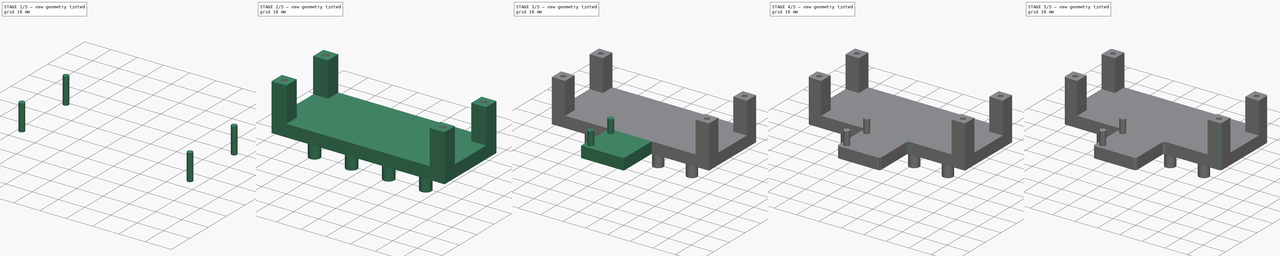
[diagram: build sequence overview — one tinted view per stage of 5, left to right]
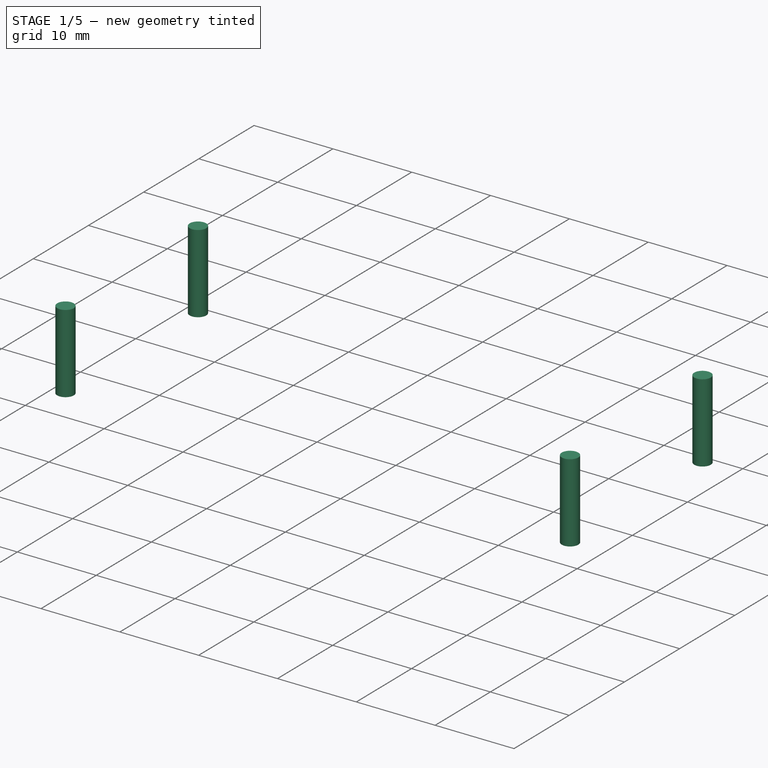
[diagram: stage 1 of 5 — iso view after this stage's code; geometry added in this stage tinted green]
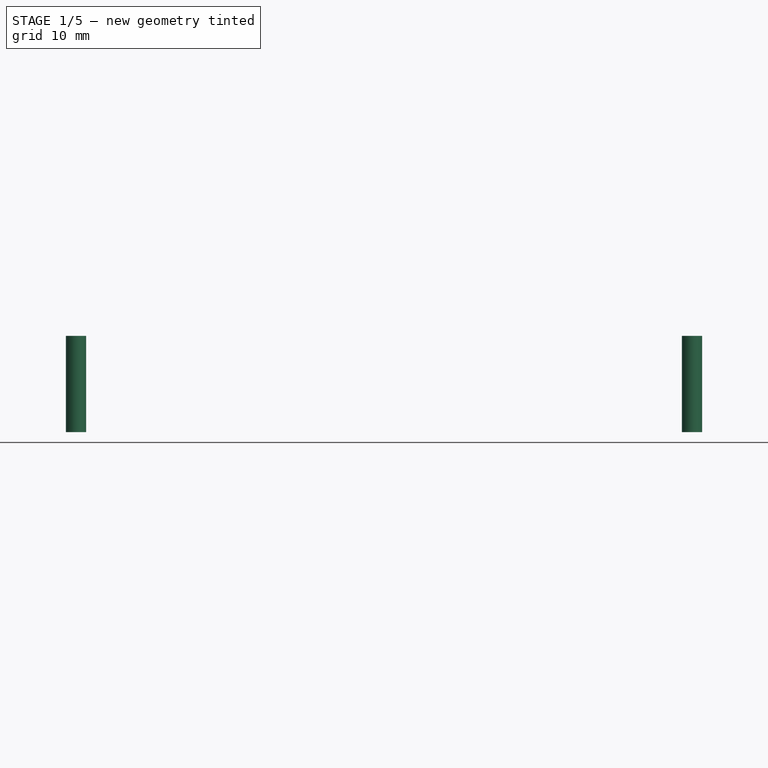
[diagram: stage 1 of 5 — front view after this stage's code; geometry added in this stage tinted green]
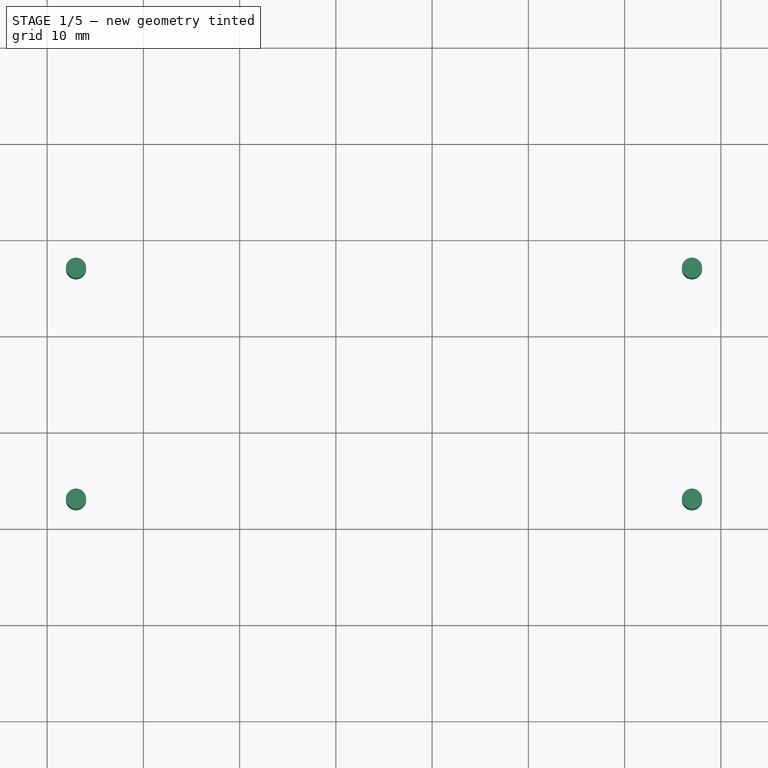
[diagram: stage 1 of 5 — top view after this stage's code; geometry added in this stage tinted green]
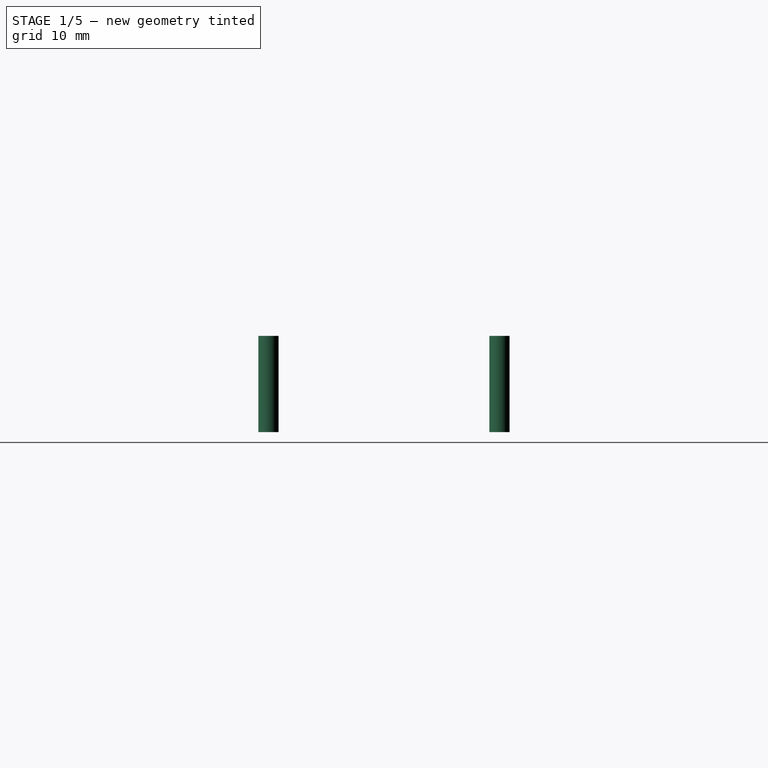
[diagram: stage 1 of 5 — right view after this stage's code; geometry added in this stage tinted green]
FCSTD DOCUMENT  (FreeCAD 1.0R39109 (Git))
Label: speaker-plate
License: All rights reserved
LicenseURL: https://en.wikipedia.org/wiki/All_rights_reserved
objects: Part::Fillet×7, Sketcher::SketchObject×5, Part::Extrusion×5, Part::MultiFuse×3, Part::Box×1, Part::Cut×1
note: 27 computed .brp shape members not serialized (recipe doc carries the construction recipe); baked Part::Feature solids carry a one-line shape summary decoded from their .brp

FEATURE [Part::Box] Box  label="Cube"
  AttacherType = Attacher::AttachEngine3D
  Height = 5
  Length = 70
  Width = 30
FEATURE [Sketcher::SketchObject] Sketch
  ArcFitTolerance = 1e-06
  AttachmentSupport = -> [Box]
  ExternalGeometry = -> [Box]
  FullyConstrained = true
  MakeInternals = false
  MapMode = 5
  Placement = pos=(0,0,5) rot=(0,0,1;0rad)
  sketch-geometry (16):
    g0: LineSegment StartX=0 StartY=30 StartZ=0 EndX=0 EndY=24 EndZ=0
    g1: LineSegment StartX=0 StartY=24 StartZ=0 EndX=6 EndY=24 EndZ=0
    g2: LineSegment StartX=6 StartY=24 StartZ=0 EndX=6 EndY=30 EndZ=0
    g3: LineSegment StartX=6 StartY=30 StartZ=0 EndX=0 EndY=30 EndZ=0
    g4: LineSegment StartX=0 StartY=0 StartZ=0 EndX=6 EndY=0 EndZ=0
    g5: LineSegment StartX=6 StartY=0 StartZ=0 EndX=6 EndY=6 EndZ=0
    g6: LineSegment StartX=6 StartY=6 StartZ=0 EndX=0 EndY=6 EndZ=0
    g7: LineSegment StartX=0 StartY=6 StartZ=0 EndX=0 EndY=0 EndZ=0
    g8: LineSegment StartX=70 StartY=0 StartZ=0 EndX=70 EndY=6 EndZ=0
    g9: LineSegment StartX=70 StartY=6 StartZ=0 EndX=64 EndY=6 EndZ=0
    g10: LineSegment StartX=64 StartY=6 StartZ=0 EndX=64 EndY=0 EndZ=0
    g11: LineSegment StartX=64 StartY=0 StartZ=0 EndX=70 EndY=0 EndZ=0
    g12: LineSegment StartX=70 StartY=30 StartZ=0 EndX=64 EndY=30 EndZ=0
    g13: LineSegment StartX=64 StartY=30 StartZ=0 EndX=64 EndY=24 EndZ=0
    g14: LineSegment StartX=64 StartY=24 StartZ=0 EndX=70 EndY=24 EndZ=0
    g15: LineSegment StartX=70 StartY=24 StartZ=0 EndX=70 EndY=30 EndZ=0
  constraints (44):
    c: Coincident(g0,g1)
    c: Coincident(g1,g2)
    c: Coincident(g2,g3)
    c: Coincident(g3,g0)
    c: Vertical(g0)
    c: Vertical(g2)
    c: Horizontal(g1)
    c: Horizontal(g3)
    c: Coincident(g0,g-6)
    c: Coincident(g4,g5)
    c: Coincident(g5,g6)
    c: Coincident(g6,g7)
    c: Coincident(g7,g4)
    c: Horizontal(g4)
    c: Horizontal(g6)
    c: Vertical(g5)
    c: Vertical(g7)
    c: Coincident(g4,g-1)
    c: Coincident(g8,g9)
    c: Coincident(g9,g10)
    c: Coincident(g10,g11)
    c: Coincident(g11,g8)
    c: Vertical(g8)
    c: Vertical(g10)
    c: Horizontal(g9)
    c: Horizontal(g11)
    c: Coincident(g8,g-5)
    c: Coincident(g12,g13)
    c: Coincident(g13,g14)
    c: Coincident(g14,g15)
    c: Coincident(g15,g12)
    c: Horizontal(g12)
    c: Horizontal(g14)
    c: Vertical(g13)
    c: Vertical(g15)
    c: Coincident(g12,g-4)
    c: Distance(g3) = 6
    c: Distance(g0) = 6
    c: Distance(g7) = 6
    c: Distance(g4) = 6
    c: Distance(g11) = 6
    c: Distance(g8) = 6
    c: Distance(g12) = 6
    c: Distance(g15) = 6
FEATURE [Part::Extrusion] Extrude
  Base = -> Sketch
  Dir = (0,0,1)
  DirMode = 2
  FaceMakerClass = Part::FaceMakerBullseye
  FaceMakerMode = 3
  LengthFwd = 14
  LengthRev = 0
  Solid = true
  Symmetric = false
FEATURE [Sketcher::SketchObject] Sketch001
  ArcFitTolerance = 1e-06
  AttachmentSupport = -> [Extrude]
  ExternalGeometry = -> [Extrude]
  FullyConstrained = true
  MakeInternals = false
  MapMode = 5
  Placement = pos=(0,0,19) rot=(0,0,1;0rad)
  sketch-geometry (4):
    g0: Circle CenterX=3 CenterY=27 CenterZ=0 NormalX=0 NormalY=0 NormalZ=1 AngleXU=0 Radius=1.05
    g1: Circle CenterX=3 CenterY=3 CenterZ=0 NormalX=0 NormalY=0 NormalZ=1 AngleXU=0 Radius=1.05
    g2: Circle CenterX=67 CenterY=3 CenterZ=0 NormalX=0 NormalY=0 NormalZ=1 AngleXU=0 Radius=1.05
    g3: Circle CenterX=67 CenterY=27 CenterZ=0 NormalX=0 NormalY=0 NormalZ=1 AngleXU=0 Radius=1.05
  constraints (12):
    c: Diameter(g0) = 2.1
    c: Distance(g0,g-3) = 3
    c: Distance(g0,g-4) = 3
    c: Distance(g1,g-1) = 3
    c: Distance(g1,g-2) = 3
    c: Diameter(g1) = 2.1
    c: Diameter(g2) = 2.1
    c: Distance(g2,g-5) = 3
    c: Distance(g2,g-1) = 3
    c: Distance(g3,g-6) = 3
    c: Distance(g3,g-7) = 3
    c: Diameter(g3) = 2.1
FEATURE [Part::Extrusion] Extrude001
  Base = -> Sketch001
  Dir = (0,0,1)
  DirMode = 2
  FaceMakerClass = Part::FaceMakerBullseye
  FaceMakerMode = 3
  LengthFwd = 0
  LengthRev = 10
  Solid = true
  Symmetric = false
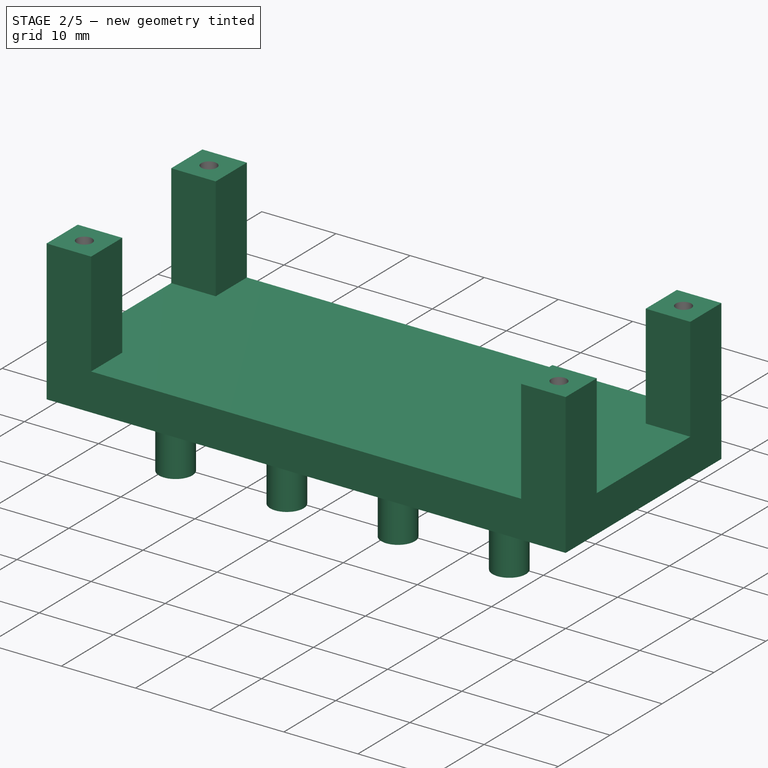
[diagram: stage 2 of 5 — iso view after this stage's code; geometry added in this stage tinted green]
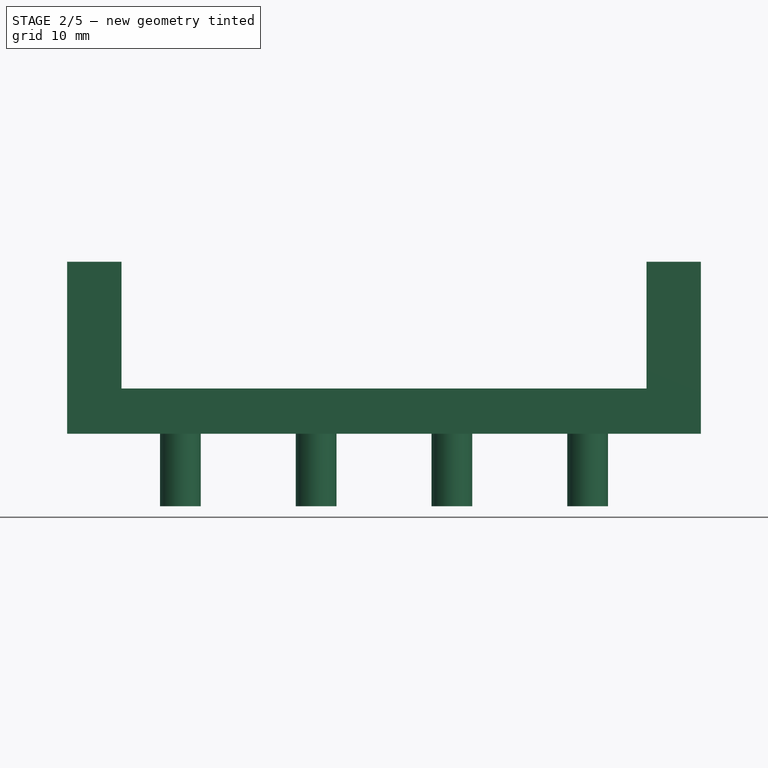
[diagram: stage 2 of 5 — front view after this stage's code; geometry added in this stage tinted green]
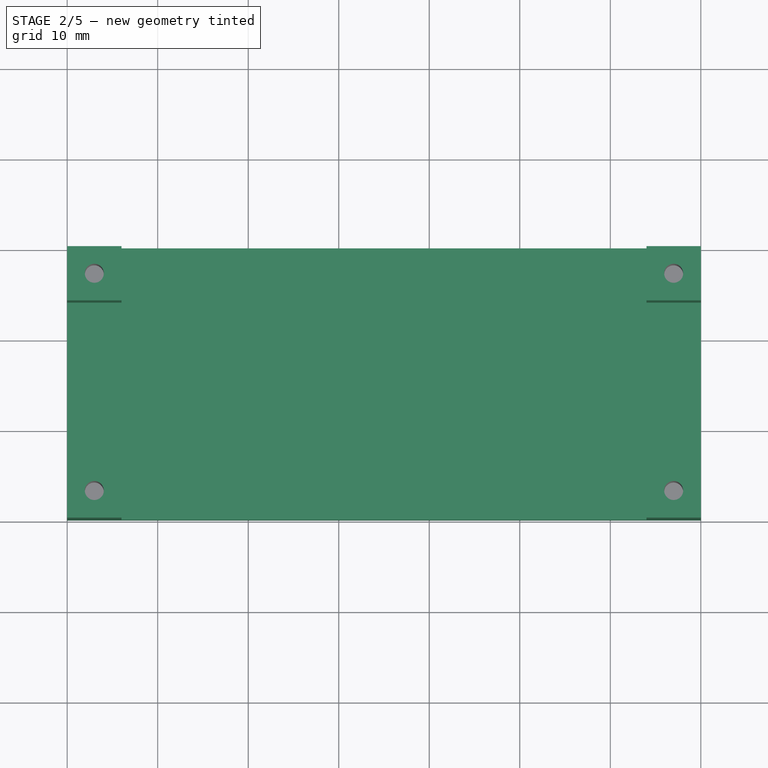
[diagram: stage 2 of 5 — top view after this stage's code; geometry added in this stage tinted green]
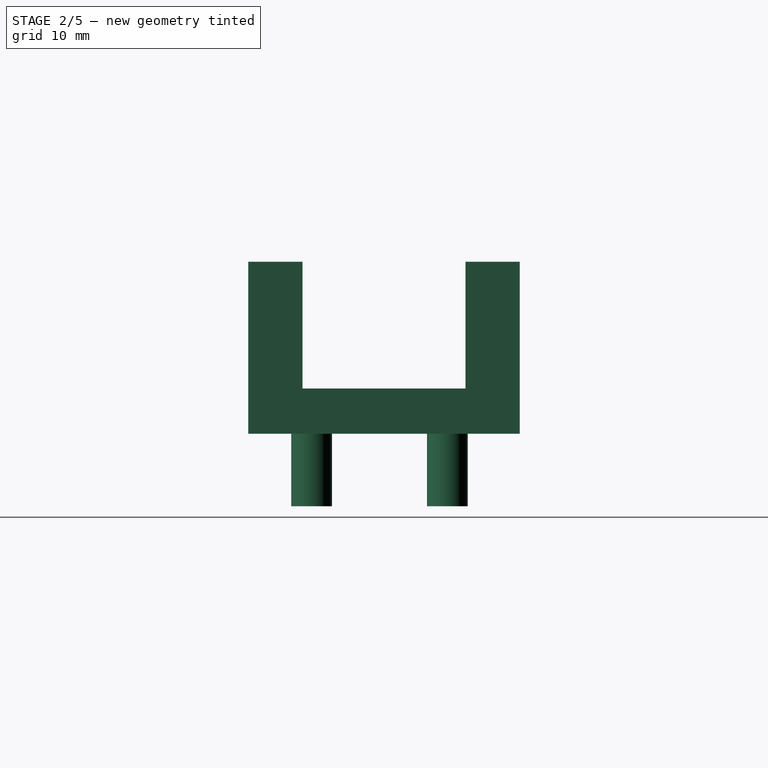
[diagram: stage 2 of 5 — right view after this stage's code; geometry added in this stage tinted green]
FEATURE [Part::Cut] Cut
  Base = -> Extrude
  Tool = -> Extrude001
FEATURE [Part::MultiFuse] Fusion
  Shapes = -> [Box,Cut]
FEATURE [Sketcher::SketchObject] Sketch002
  ArcFitTolerance = 1e-06
  AttachmentSupport = -> [Fusion]
  ExternalGeometry = -> [Fusion]
  FullyConstrained = true
  MakeInternals = false
  MapMode = 5
  Placement = pos=(0,0,0) rot=(1,0,0;3.14159rad)
  sketch-geometry (8):
    g0: Circle CenterX=42.5 CenterY=-7 CenterZ=0 NormalX=0 NormalY=0 NormalZ=1 AngleXU=0 Radius=2.25
    g1: Circle CenterX=27.5 CenterY=-7 CenterZ=0 NormalX=0 NormalY=0 NormalZ=1 AngleXU=0 Radius=2.25
    g2: Circle CenterX=57.5 CenterY=-7 CenterZ=0 NormalX=0 NormalY=0 NormalZ=1 AngleXU=0 Radius=2.25
    g3: Circle CenterX=12.5 CenterY=-7 CenterZ=0 NormalX=0 NormalY=0 NormalZ=1 AngleXU=0 Radius=2.25
    g4: Circle CenterX=42.5 CenterY=-22 CenterZ=0 NormalX=0 NormalY=0 NormalZ=1 AngleXU=0 Radius=2.25
    g5: Circle CenterX=57.5 CenterY=-22 CenterZ=0 NormalX=0 NormalY=0 NormalZ=1 AngleXU=0 Radius=2.25
    g6: Circle CenterX=12.5 CenterY=-22 CenterZ=0 NormalX=0 NormalY=0 NormalZ=1 AngleXU=0 Radius=2.25
    g7: Circle CenterX=27.5 CenterY=-22 CenterZ=0 NormalX=0 NormalY=0 NormalZ=1 AngleXU=0 Radius=2.25
  constraints (24):
    c: Diameter(g3) = 4.5
    c: Diameter(g1) = 4.5
    c: Diameter(g0) = 4.5
    c: Diameter(g4) = 4.5
    c: Diameter(g5) = 4.5
    c: Diameter(g2) = 4.5
    c: Distance(g1,g0) = 15
    c: Distance(g2,g0) = 15
    c: Distance(g3,g1) = 15
    c: Distance(g4,g5) = 15
    c: Diameter(g7) = 4.5
    c: Diameter(g6) = 4.5
    c: Distance(g7,g4) = 15
    c: Distance(g6,g7) = 15
    c: Distance(g2,g-1) = 7
    c: Distance(g0,g-1) = 7
    c: Distance(g1,g-1) = 7
    c: Distance(g3,g-1) = 7
    c: Distance(g6,g3) = 15
    c: Distance(g7,g1) = 15
    c: Distance(g4,g0) = 15
    c: Distance(g5,g2) = 15
    c: Distance(g3,g-2) = 12.5
    c: Distance(g6,g-2) = 12.5
FEATURE [Part::Extrusion] Extrude003
  Base = -> Sketch002
  Dir = (0,0,-1)
  DirMode = 2
  FaceMakerClass = Part::FaceMakerBullseye
  FaceMakerMode = 3
  LengthFwd = 8
  LengthRev = 0
  Solid = true
  Symmetric = false
FEATURE [Part::MultiFuse] Fusion001
  Shapes = -> [Fusion,Extrude003]
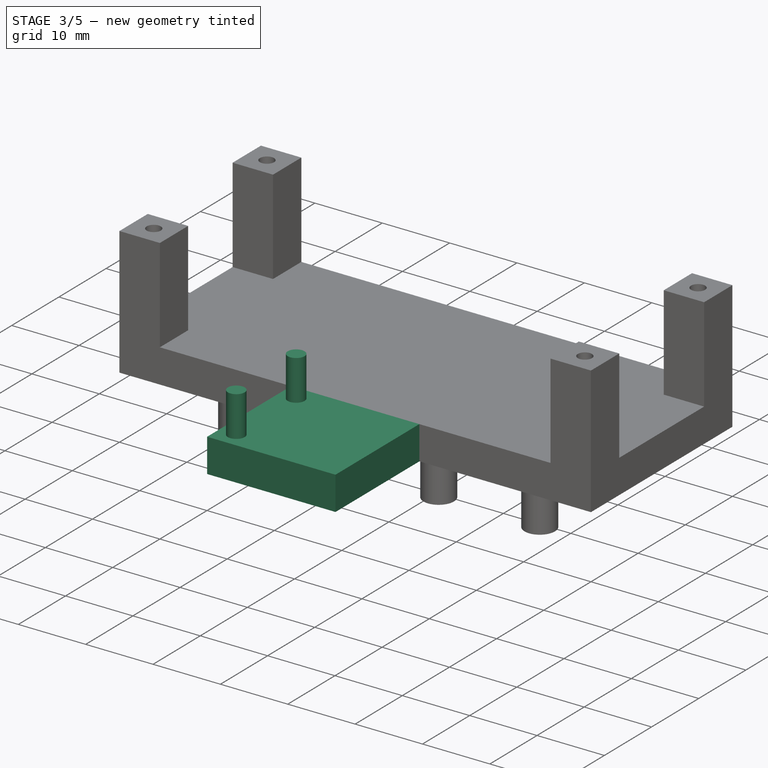
[diagram: stage 3 of 5 — iso view after this stage's code; geometry added in this stage tinted green]
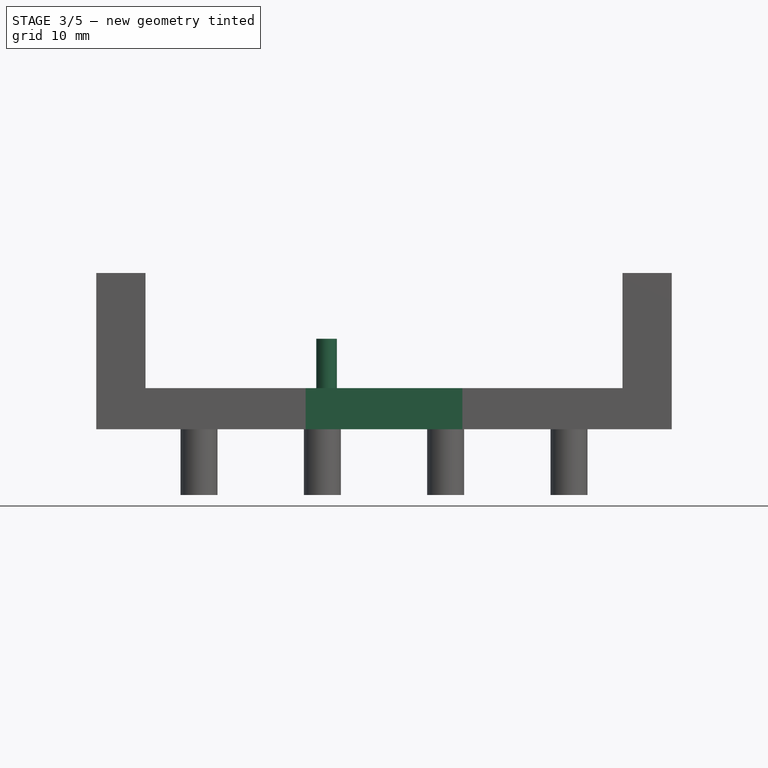
[diagram: stage 3 of 5 — front view after this stage's code; geometry added in this stage tinted green]
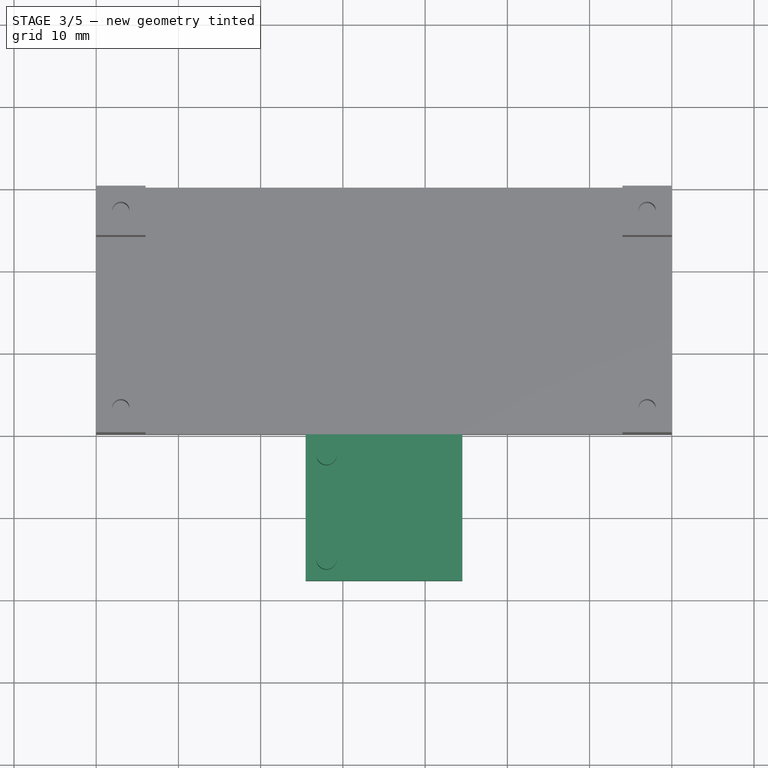
[diagram: stage 3 of 5 — top view after this stage's code; geometry added in this stage tinted green]
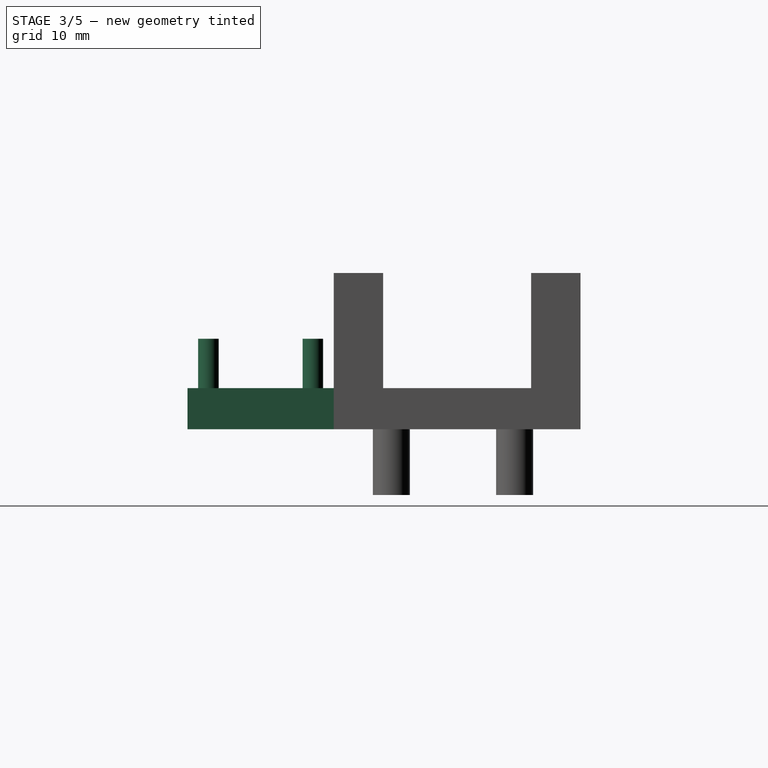
[diagram: stage 3 of 5 — right view after this stage's code; geometry added in this stage tinted green]
FEATURE [Sketcher::SketchObject] Sketch003
  ArcFitTolerance = 1e-06
  AttachmentSupport = -> [Fusion001]
  ExternalGeometry = -> [Fusion001]
  FullyConstrained = true
  MakeInternals = false
  MapMode = 5
  Placement = pos=(0,0,0) rot=(1,0,0;1.5708rad)
  sketch-geometry (4):
    g0: LineSegment StartX=25.475 StartY=5 StartZ=0 EndX=25.475 EndY=0 EndZ=0
    g1: LineSegment StartX=25.475 StartY=0 StartZ=0 EndX=44.525 EndY=0 EndZ=0
    g2: LineSegment StartX=44.525 StartY=0 StartZ=0 EndX=44.525 EndY=5 EndZ=0
    g3: LineSegment StartX=44.525 StartY=5 StartZ=0 EndX=25.475 EndY=5 EndZ=0
  constraints (12):
    c: Coincident(g0,g1)
    c: Coincident(g1,g2)
    c: Coincident(g2,g3)
    c: Coincident(g3,g0)
    c: Vertical(g0)
    c: Vertical(g2)
    c: Horizontal(g1)
    c: Horizontal(g3)
    c: PointOnObject(g0,g-4)
    c: PointOnObject(g1,g-8)
    c: Distance(g3) = 19.05
    c: Distance(g0,g-6) = 25.475
FEATURE [Part::Extrusion] Extrude004
  Base = -> Sketch003
  Dir = (0,-1,2e-16)
  DirMode = 2
  FaceMakerClass = Part::FaceMakerBullseye
  FaceMakerMode = 3
  LengthFwd = 17.78
  LengthRev = 0
  Solid = true
  Symmetric = false
FEATURE [Sketcher::SketchObject] Sketch004
  ArcFitTolerance = 1e-06
  AttachmentSupport = -> [Extrude004]
  ExternalGeometry = -> [Extrude004,Fusion001]
  FullyConstrained = true
  MakeInternals = false
  MapMode = 5
  Placement = pos=(0,1.1e-15,5) rot=(0,0,1;0rad)
  sketch-geometry (2):
    g0: Circle CenterX=28.015 CenterY=-2.54 CenterZ=0 NormalX=0 NormalY=0 NormalZ=1 AngleXU=0 Radius=1.25
    g1: Circle CenterX=28.015 CenterY=-15.24 CenterZ=0 NormalX=0 NormalY=0 NormalZ=1 AngleXU=0 Radius=1.25
  constraints (6):
    c: Diameter(g1) = 2.5
    c: Diameter(g0) = 2.5
    c: Distance(g0,g-3) = 2.54
    c: Distance(g0,g1) = 12.7
    c: Distance(g1,g-3) = 2.54
    c: Distance(g1,g-4) = 2.54
FEATURE [Part::Extrusion] Extrude006
  Base = -> Sketch004
  Dir = (0,0,1)
  DirMode = 2
  FaceMakerClass = Part::FaceMakerBullseye
  FaceMakerMode = 3
  LengthFwd = 6
  LengthRev = 0
  Solid = true
  Symmetric = false
FEATURE [Part::MultiFuse] Fusion002
  Shapes = -> [Extrude006,Extrude004,Fusion001]
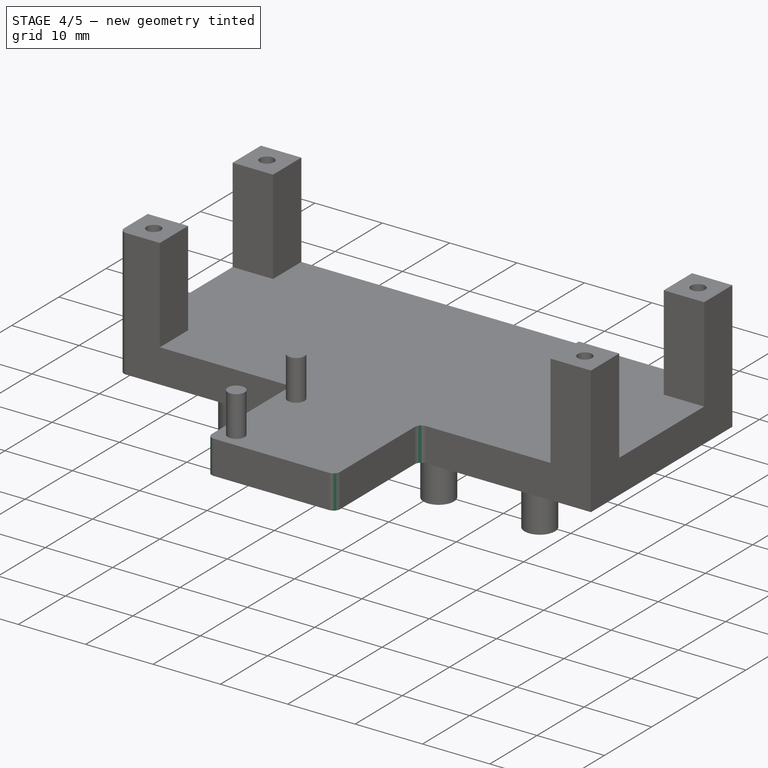
[diagram: stage 4 of 5 — iso view after this stage's code; geometry added in this stage tinted green]
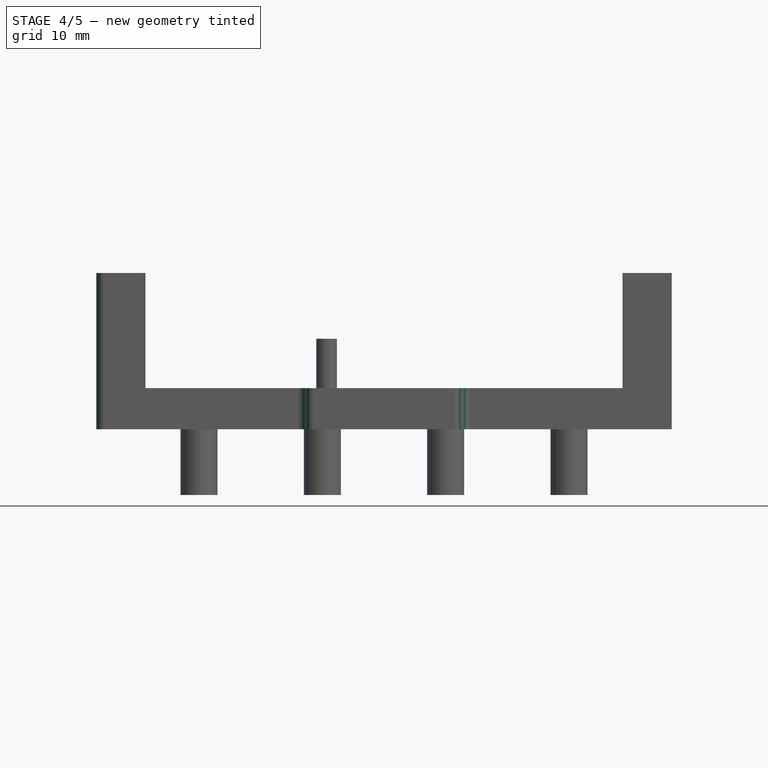
[diagram: stage 4 of 5 — front view after this stage's code; geometry added in this stage tinted green]
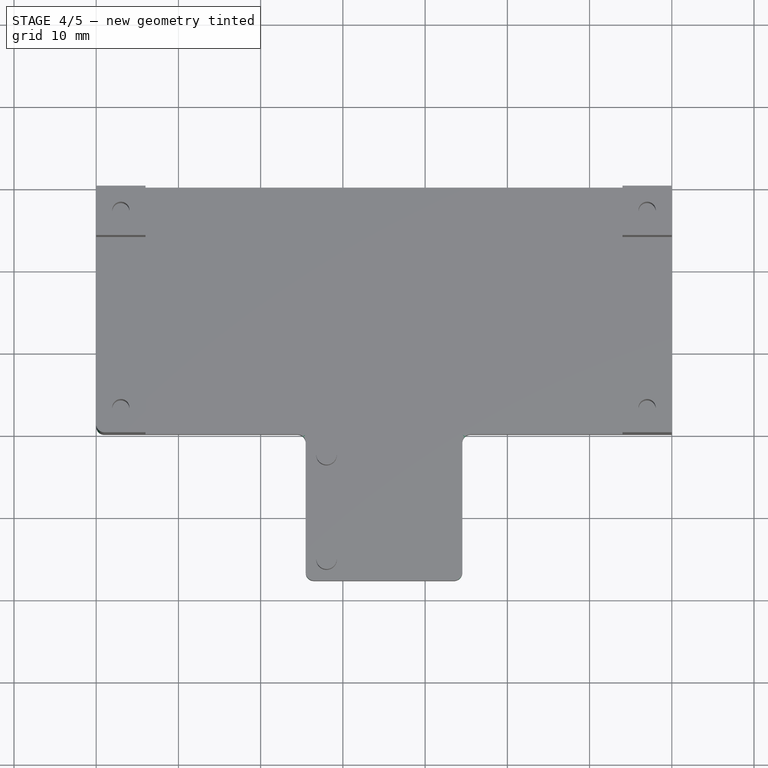
[diagram: stage 4 of 5 — top view after this stage's code; geometry added in this stage tinted green]
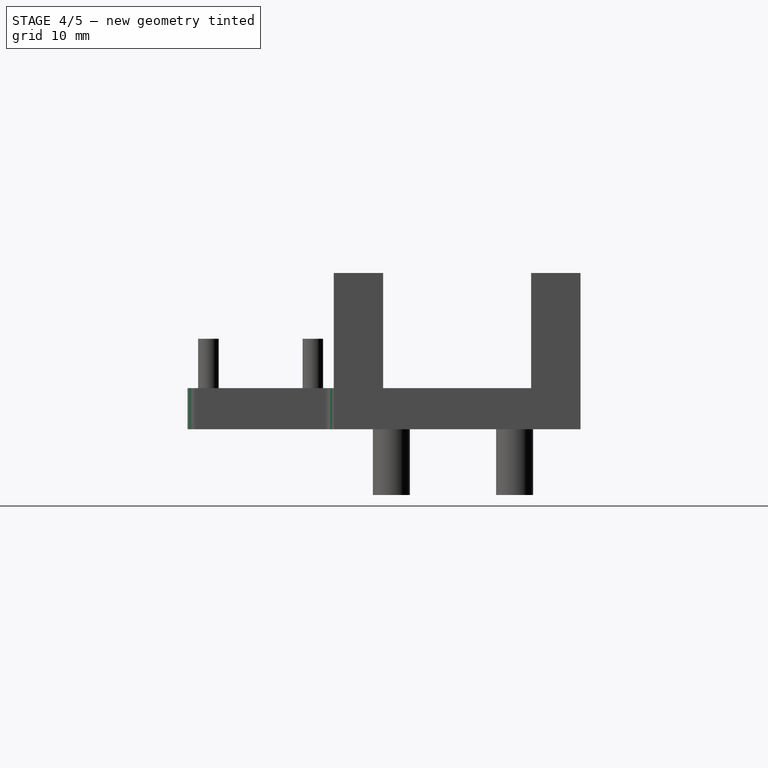
[diagram: stage 4 of 5 — right view after this stage's code; geometry added in this stage tinted green]
FEATURE [Part::Fillet] Fillet
  Base = -> Fusion002
  EdgeLinks = -> Fusion002 [Edge16,Edge47]
  Edges = 2 edges r=1: [Edge16,Edge47]
FEATURE [Part::Fillet] Fillet001
  Base = -> Fillet
  EdgeLinks = -> Fillet [Edge3,Edge24]
  Edges = 2 edges r=1: [Edge3,Edge24]
FEATURE [Part::Fillet] Fillet002
  Base = -> Fillet001
  EdgeLinks = -> Fillet001 [Edge105]
  Edges = 1 edges r=1: [Edge105]
FEATURE [Part::Fillet] Fillet003
  Base = -> Fillet002
  EdgeLinks = -> Fillet002 [Edge16]
  Edges = 1 edges r=1: [Edge16]
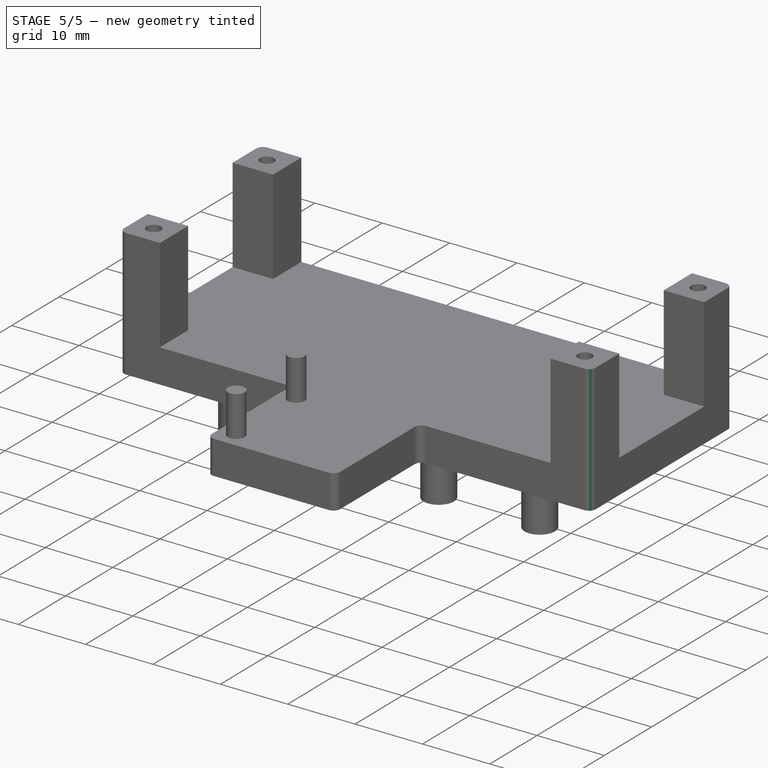
[diagram: stage 5 of 5 — iso view after this stage's code; geometry added in this stage tinted green]
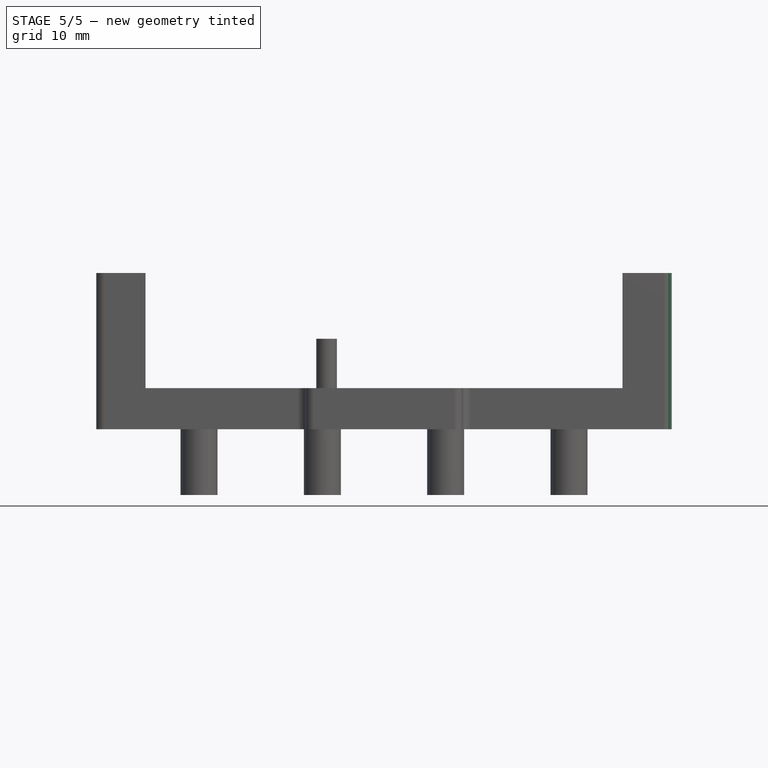
[diagram: stage 5 of 5 — front view after this stage's code; geometry added in this stage tinted green]
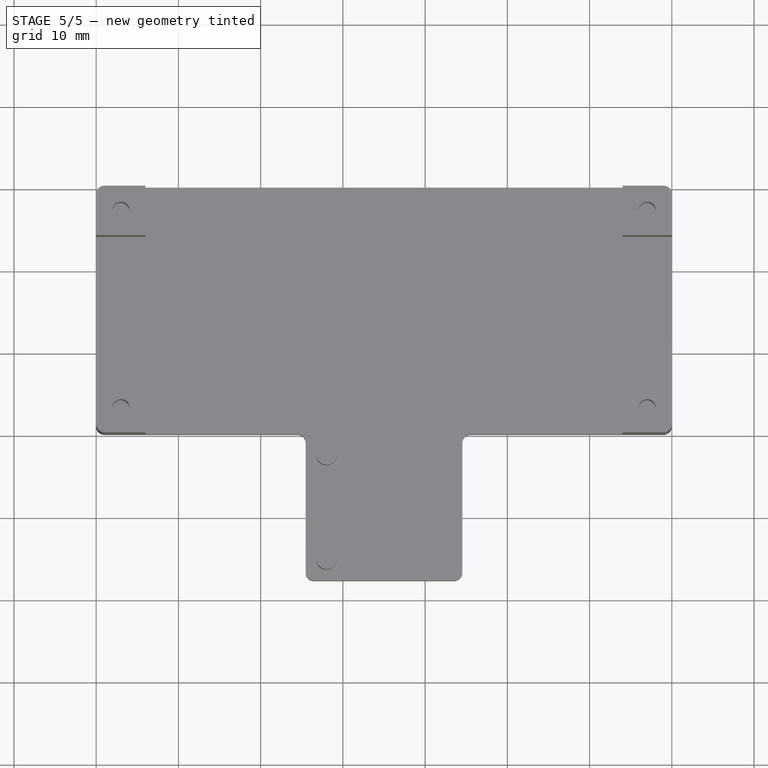
[diagram: stage 5 of 5 — top view after this stage's code; geometry added in this stage tinted green]
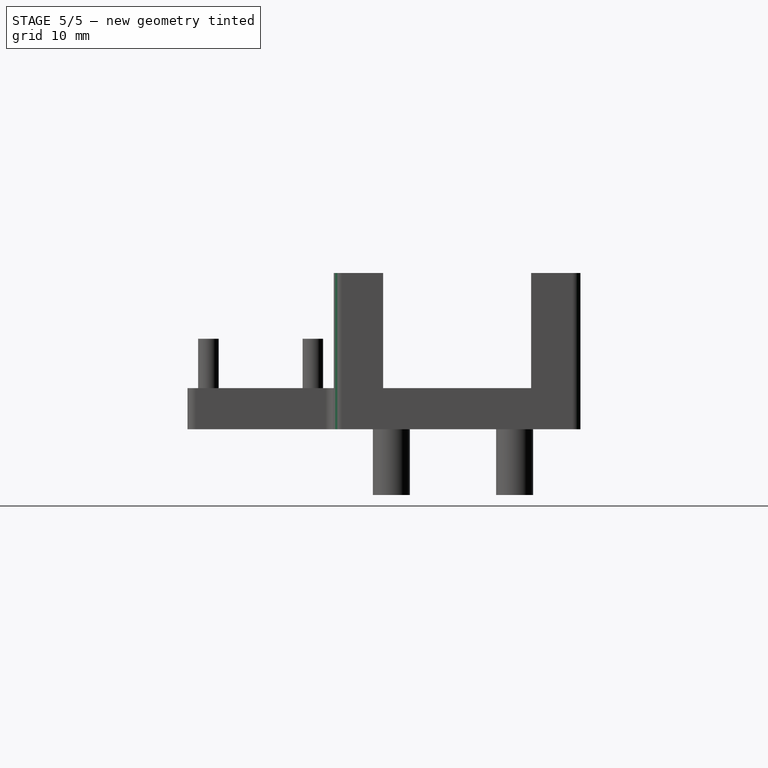
[diagram: stage 5 of 5 — right view after this stage's code; geometry added in this stage tinted green]
FEATURE [Part::Fillet] Fillet004
  Base = -> Fillet003
  EdgeLinks = -> Fillet003 [Edge45,Edge93]
  Edges = 2 edges r=1: [Edge45,Edge93]
FEATURE [Part::Fillet] Fillet005
  Base = -> Fillet004
  EdgeLinks = -> Fillet004 [Edge35,Edge97]
  Edges = 2 edges r=1: [Edge35,Edge97]
FEATURE [Part::Fillet] Fillet006  label="speaker-plate"
  Base = -> Fillet005
  EdgeLinks = -> Fillet005 [Edge29,Edge92]
  Edges = 2 edges r=1: [Edge29,Edge92]
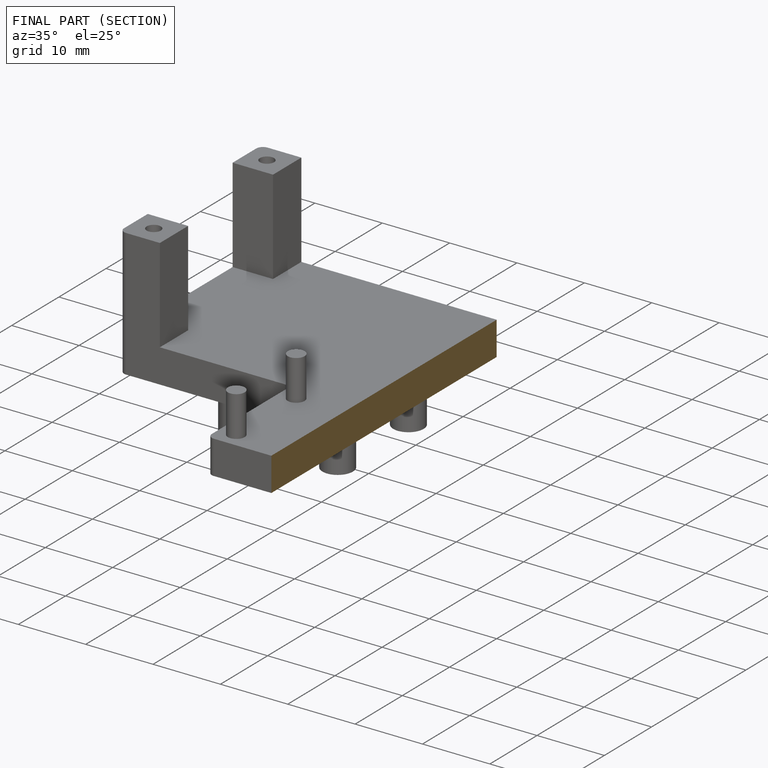
[diagram: finished part — half-section view (interior)]
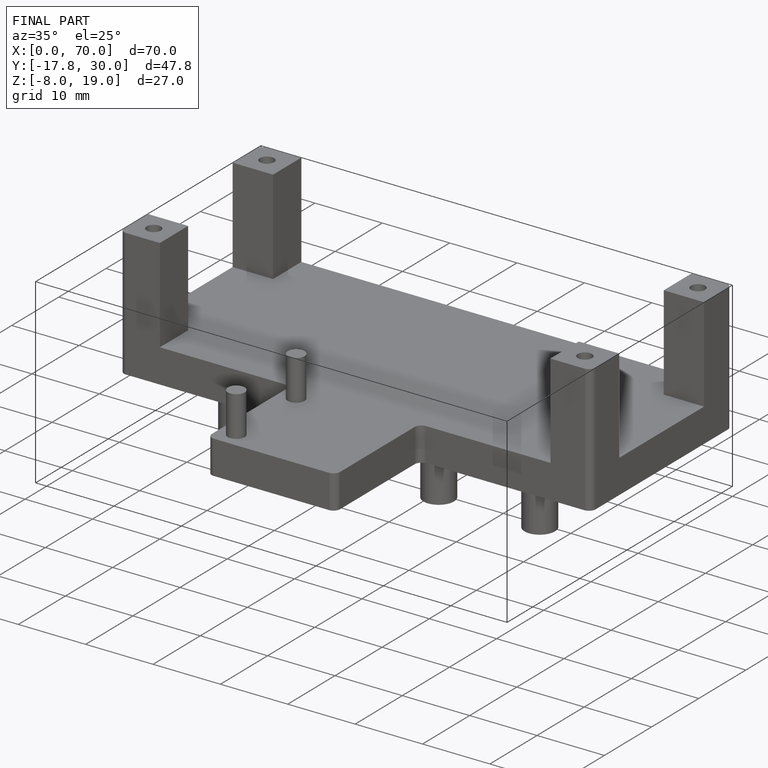
[diagram: finished part — iso view with bounding-box wireframe]
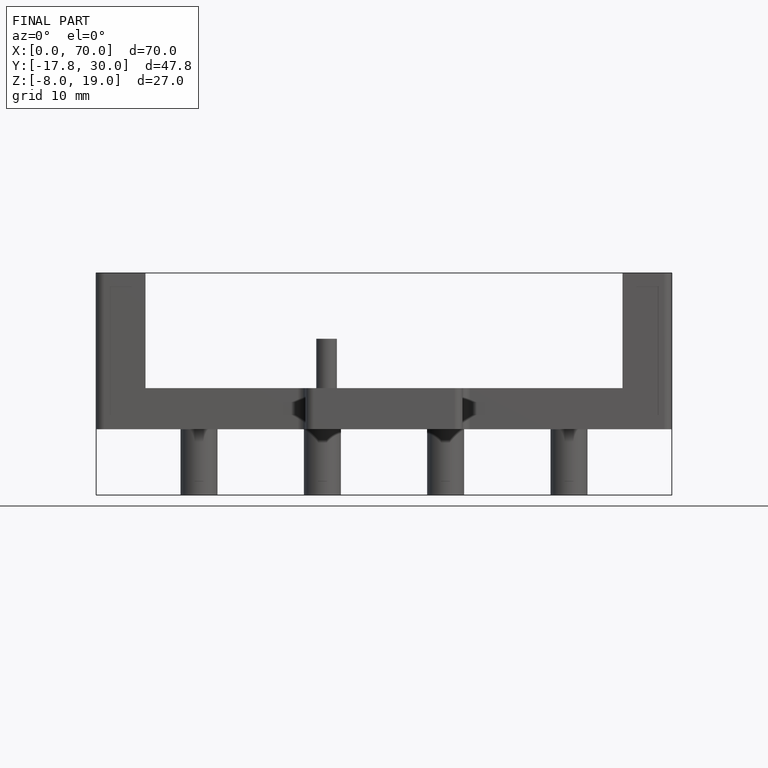
[diagram: finished part — front view with bounding-box wireframe]
